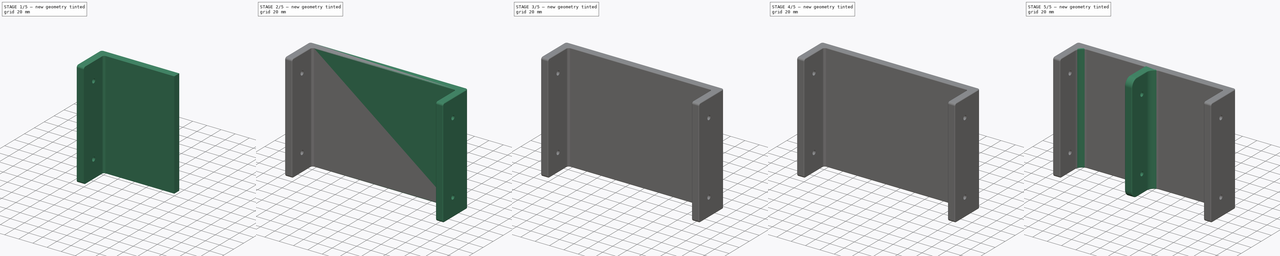
[diagram: build sequence overview — one tinted view per stage of 5, left to right]
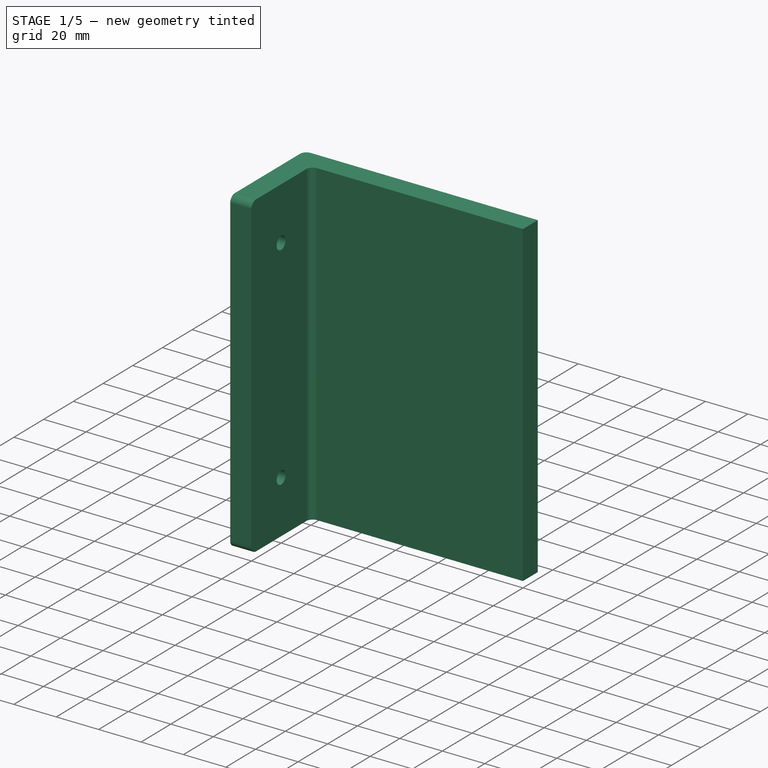
[diagram: stage 1 of 5 — iso view after this stage's code; geometry added in this stage tinted green]
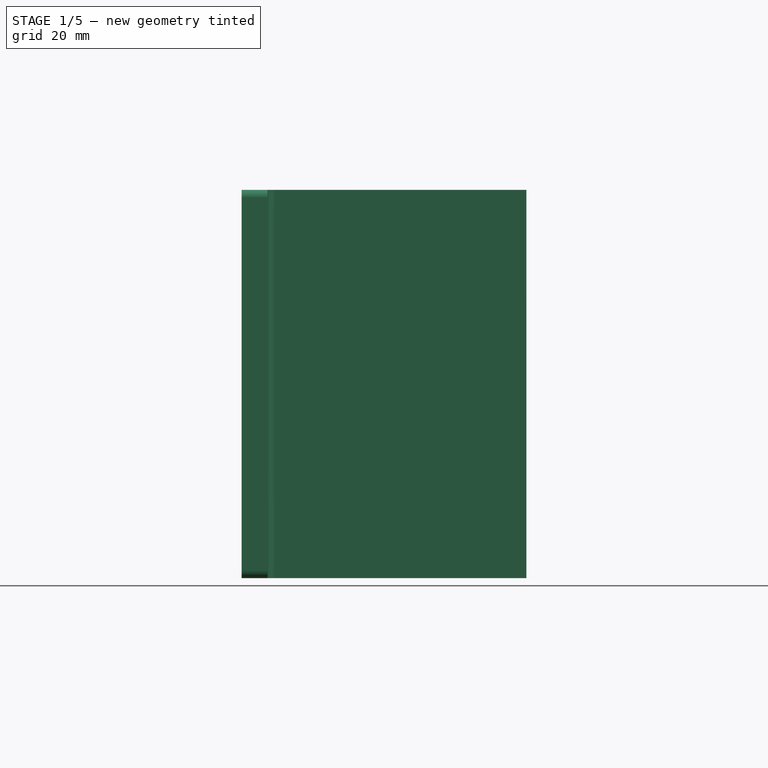
[diagram: stage 1 of 5 — front view after this stage's code; geometry added in this stage tinted green]
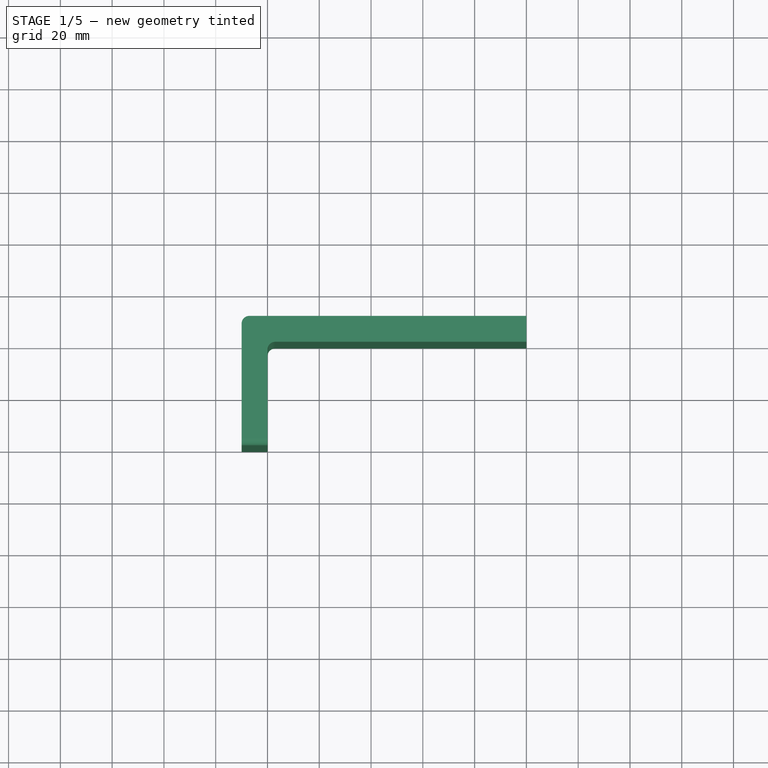
[diagram: stage 1 of 5 — top view after this stage's code; geometry added in this stage tinted green]
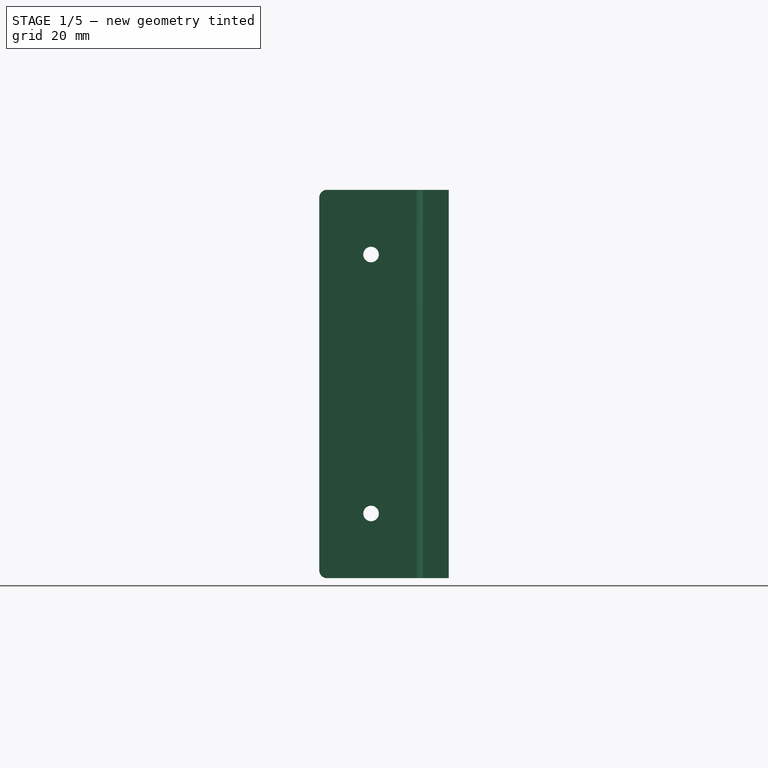
[diagram: stage 1 of 5 — right view after this stage's code; geometry added in this stage tinted green]
FCSTD DOCUMENT  (FreeCAD 1.0R39319 (Git))
Label: Batterie_fixation
License: All rights reserved
LicenseURL: https://en.wikipedia.org/wiki/All_rights_reserved
objects: PartDesign::Fillet×8, Sketcher::SketchObject×5, PartDesign::Pocket×3, PartDesign::Pad×2, PartDesign::Mirrored×2, PartDesign::LinearPattern×1, PartDesign::Body×1
note: 56 computed .brp shape members not serialized (recipe doc carries the construction recipe); baked Part::Feature solids carry a one-line shape summary decoded from their .brp

FEATURE [Sketcher::SketchObject] Sketch
  ArcFitTolerance = 1e-06
  AttachmentSupport = -> [XY_Plane]
  FullyConstrained = true
  MakeInternals = false
  MapMode = 5
  sketch-geometry (8):
    g0: LineSegment StartX=0 StartY=40 StartZ=0 EndX=-100 EndY=40 EndZ=0
    g1: LineSegment StartX=-100 StartY=0 StartZ=0 EndX=-100 EndY=40 EndZ=0
    g2: LineSegment StartX=-100 StartY=0 StartZ=0 EndX=-110 EndY=0 EndZ=0
    g3: LineSegment StartX=-110 StartY=0 StartZ=0 EndX=-110 EndY=50 EndZ=0
    g4: LineSegment StartX=-110 StartY=50 StartZ=0 EndX=0 EndY=50 EndZ=0
    g5: LineSegment StartX=0 StartY=50 StartZ=0 EndX=0 EndY=40 EndZ=0
    g6: LineSegment StartX=0 StartY=40 StartZ=0 EndX=0 EndY=50 EndZ=0
    g7: LineSegment StartX=0 StartY=40 StartZ=0 EndX=0 EndY=50 EndZ=0
  constraints (22):
    c: Coincident(g1,g0)
    c: Coincident(g2,g1)
    c: Coincident(g3,g2)
    c: Coincident(g4,g3)
    c: Horizontal(g4)
    c: Perpendicular(g4,g3)
    c: Perpendicular(g0,g1)
    c: Perpendicular(g1,g2)
    c: Distance(g-1,g0) = 40
    c: DistanceX(g2,g2) = 10
    c: Distance(g4,g0) = 10
    c: Coincident(g5,g4)
    c: Coincident(g5,g0)
    c: Coincident(g6,g4)
    c: Coincident(g7,g6)
    c: Coincident(g7,g4)
    c: Vertical(g7)
    c: PointOnObject(g2,g-1)
    c: PointOnObject(g1,g-1)
    c: Coincident(g0,g6)
    c: PointOnObject(g4,g-2)
    c: Distance(g-2,g1) = 100
FEATURE [PartDesign::Pad] Pad
  Direction = (0,0,1)
  Length = 150
  Length2 = 10
  Midplane = true
  Profile = -> Sketch
  ReferenceAxis = -> Sketch [N_Axis]
  Refine = true
  Suppressed = false
  Type = 0
FEATURE [Sketcher::SketchObject] Sketch001
  ArcFitTolerance = 1e-06
  AttachmentSupport = -> [Pad]
  FullyConstrained = true
  MakeInternals = false
  MapMode = 5
  Placement = pos=(-110,0,0) rot=(0.57735,-0.57735,-0.57735;2.0944rad)
  sketch-geometry (2):
    g0: Circle CenterX=-20 CenterY=-50 CenterZ=0 NormalX=0 NormalY=0 NormalZ=1 AngleXU=0 Radius=3
    g1: Circle CenterX=-20 CenterY=50 CenterZ=0 NormalX=0 NormalY=0 NormalZ=1 AngleXU=0 Radius=3
  constraints (5):
    c: Diameter(g1) = 6
    c: Equal(g1,g0)
    c: Symmetric(g1,g0,g-1)
    c: DistanceX(g0,g-1) = 20
    c: Distance(g0,g-1) = 50
FEATURE [PartDesign::Pocket] Pocket
  BaseFeature = -> Pad
  Direction = (1,0,0)
  Length = 5
  Length2 = 5
  Profile = -> Sketch001
  ReferenceAxis = -> Sketch001 [N_Axis]
  Refine = true
  Suppressed = false
  Type = 1
FEATURE [PartDesign::Fillet] Fillet
  Base = -> Pocket [Edge12,Edge5,Edge15,Edge8]
  BaseFeature = -> Pocket
  Radius = 3
  Refine = true
  SupportTransform = false
  Suppressed = false
  UseAllEdges = false
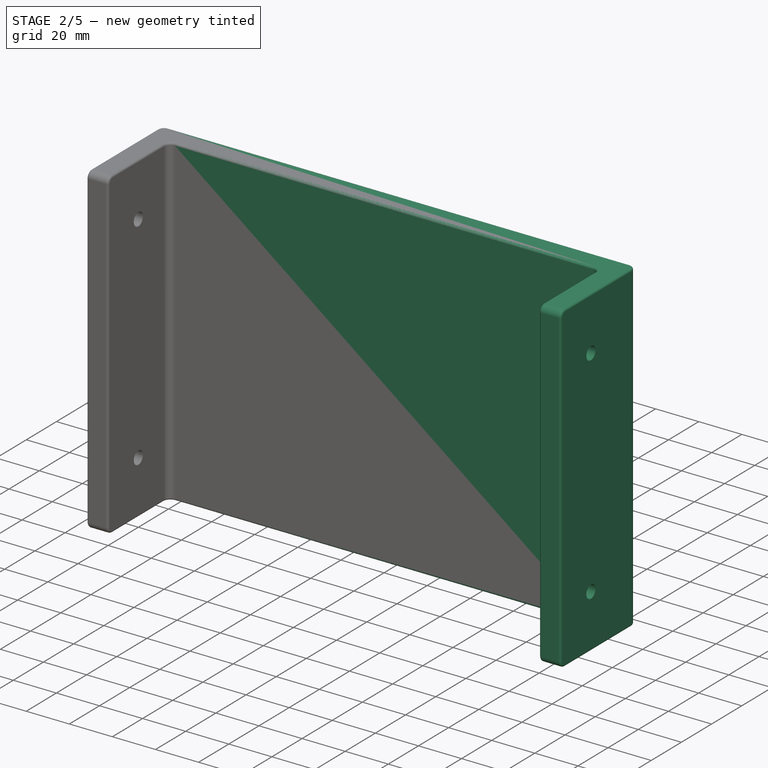
[diagram: stage 2 of 5 — iso view after this stage's code; geometry added in this stage tinted green]
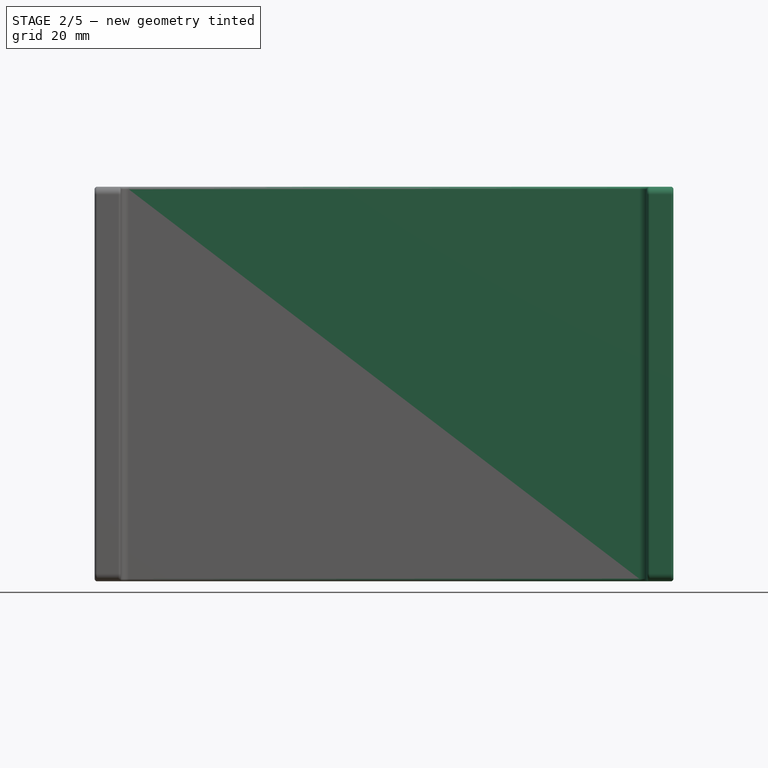
[diagram: stage 2 of 5 — front view after this stage's code; geometry added in this stage tinted green]
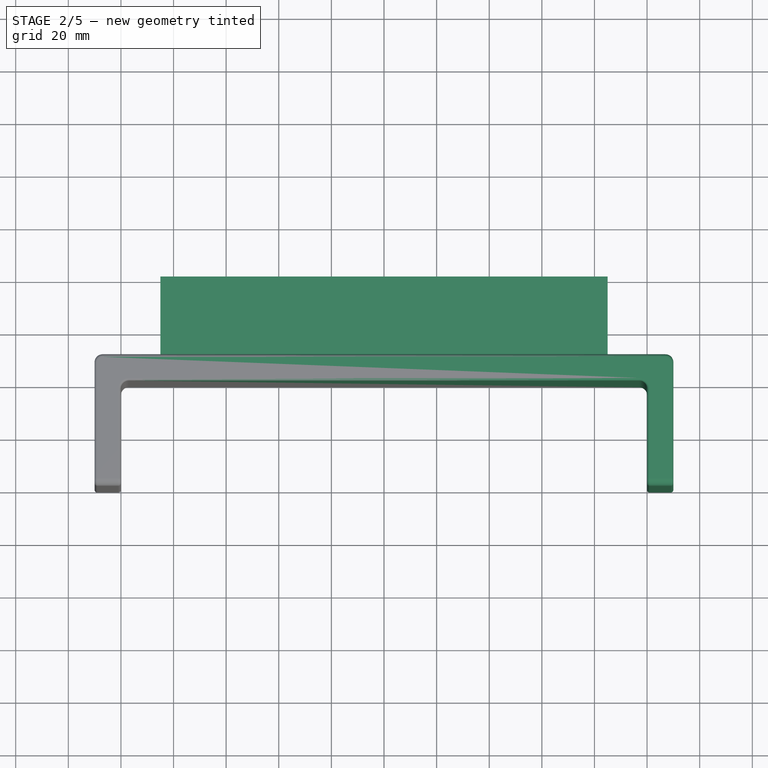
[diagram: stage 2 of 5 — top view after this stage's code; geometry added in this stage tinted green]
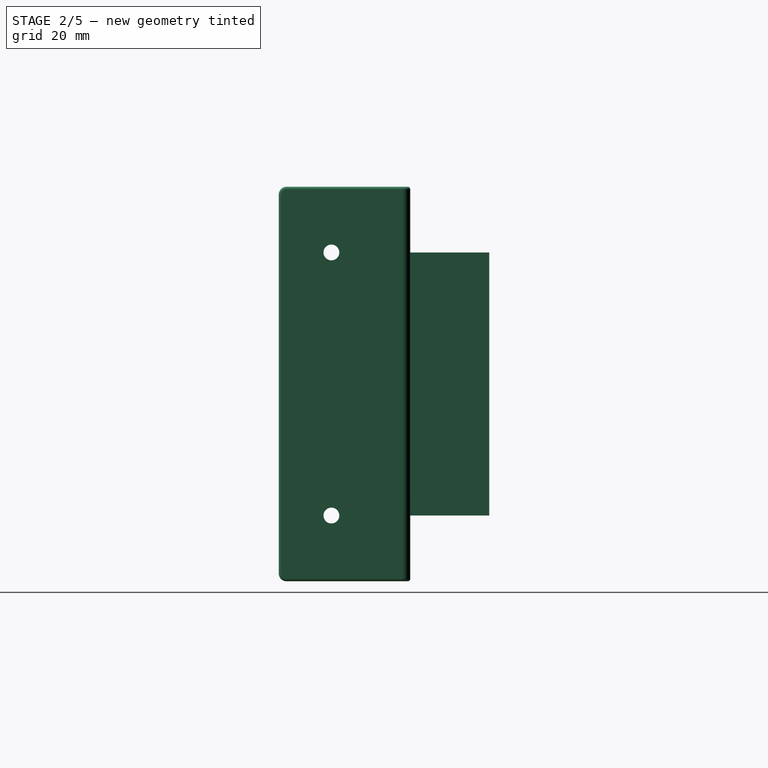
[diagram: stage 2 of 5 — right view after this stage's code; geometry added in this stage tinted green]
FEATURE [PartDesign::Fillet] Fillet001
  Base = -> Fillet [Edge18,Edge30]
  BaseFeature = -> Fillet
  Radius = 1
  Refine = true
  SupportTransform = false
  Suppressed = false
  UseAllEdges = false
FEATURE [PartDesign::Mirrored] Mirrored001
  BaseFeature = -> Fillet001
  MirrorPlane = -> YZ_Plane
  Refine = true
  Suppressed = false
  TransformMode = 1
FEATURE [PartDesign::Pad] Pad001
  BaseFeature = -> Mirrored001
  Direction = (0,1,-2e-16)
  Length = 30
  Length2 = 10
  Profile = -> Sketch002
  ReferenceAxis = -> Sketch002 [N_Axis]
  Refine = true
  Suppressed = false
  Type = 0
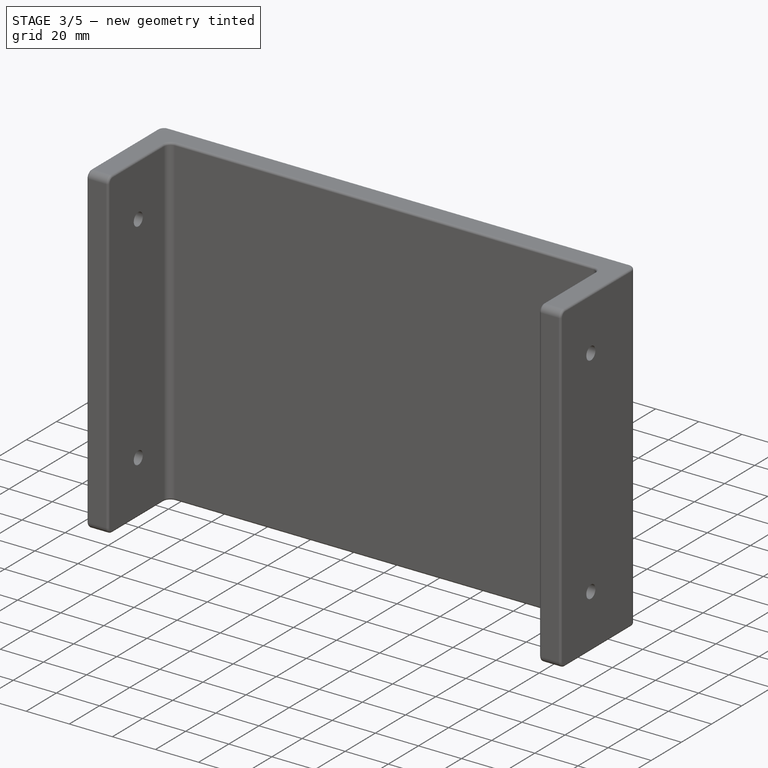
[diagram: stage 3 of 5 — iso view after this stage's code; geometry added in this stage tinted green]
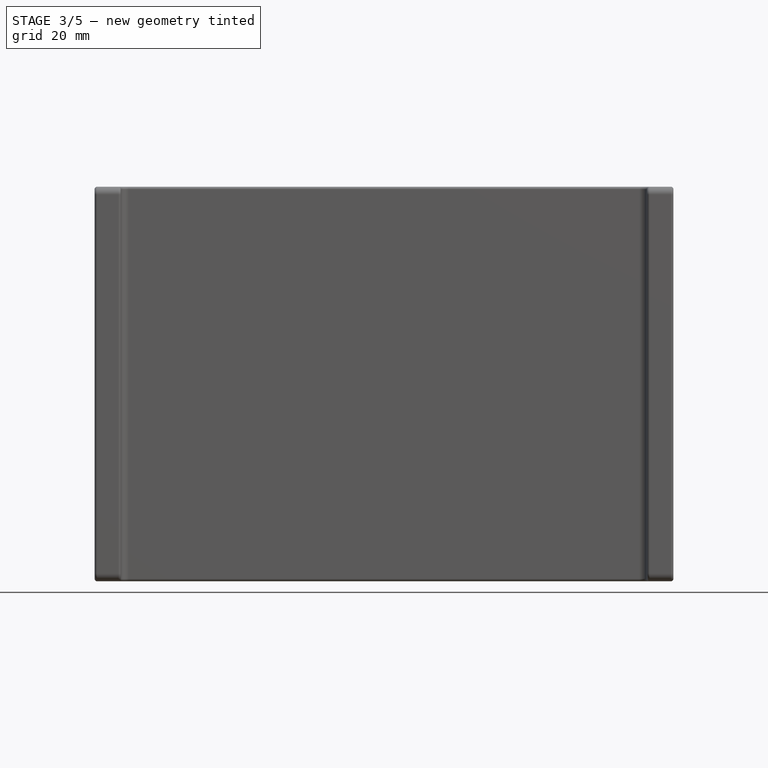
[diagram: stage 3 of 5 — front view after this stage's code; geometry added in this stage tinted green]
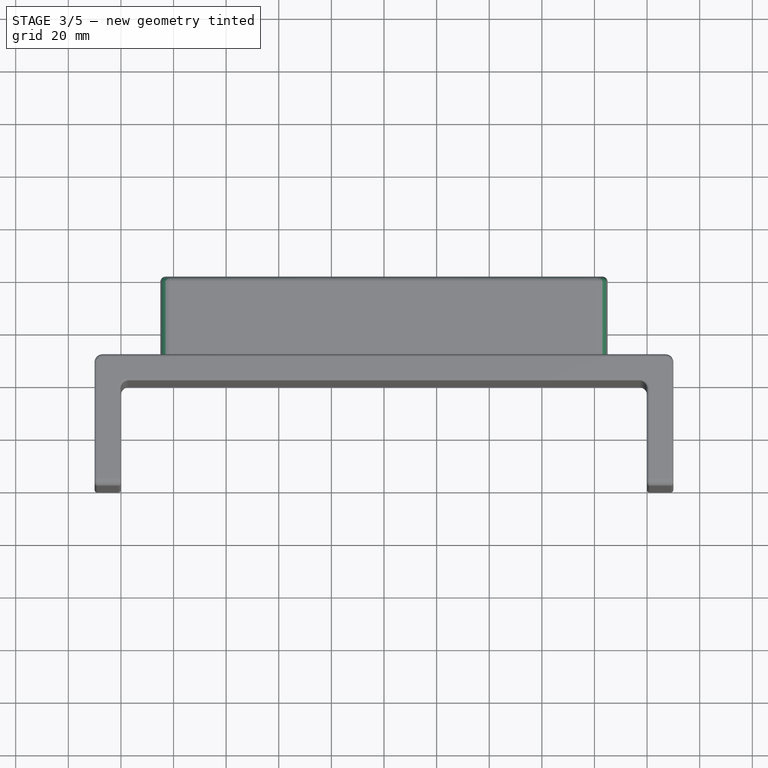
[diagram: stage 3 of 5 — top view after this stage's code; geometry added in this stage tinted green]
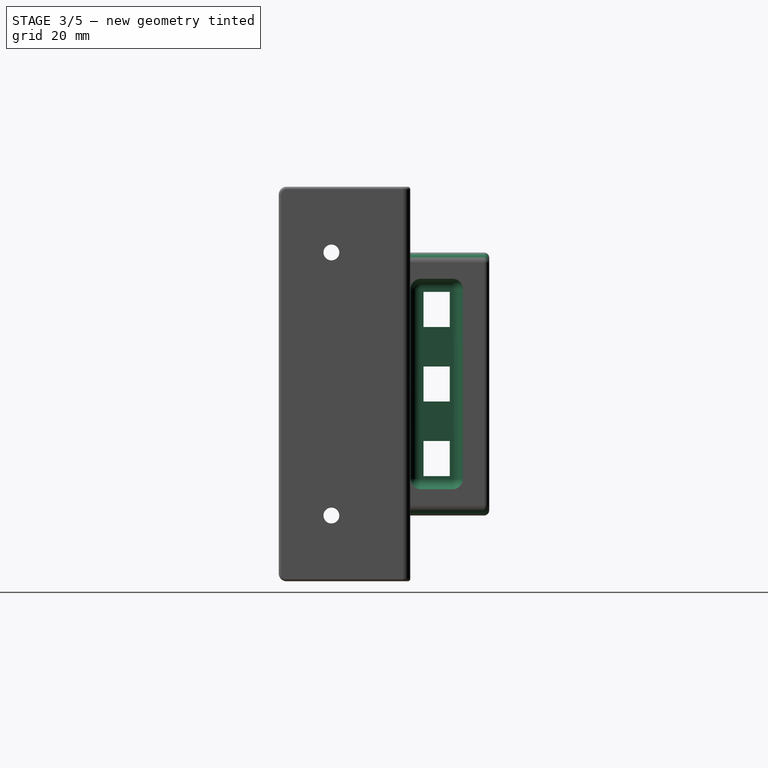
[diagram: stage 3 of 5 — right view after this stage's code; geometry added in this stage tinted green]
FEATURE [Sketcher::SketchObject] Sketch003
  ArcFitTolerance = 1e-06
  AttachmentSupport = -> [Pad001]
  ExternalGeometry = -> [Pad001]
  FullyConstrained = true
  MakeInternals = false
  MapMode = 5
  Placement = pos=(85,0,0) rot=(0.57735,0.57735,0.57735;2.0944rad)
  sketch-geometry (4):
    g0: LineSegment StartX=70 StartY=40 StartZ=0 EndX=50 EndY=40 EndZ=0
    g1: LineSegment StartX=50 StartY=40 StartZ=0 EndX=50 EndY=-40 EndZ=0
    g2: LineSegment StartX=50 StartY=-40 StartZ=0 EndX=70 EndY=-40 EndZ=0
    g3: LineSegment StartX=70 StartY=-40 StartZ=0 EndX=70 EndY=40 EndZ=0
  constraints (11):
    c: Coincident(g0,g1)
    c: Coincident(g1,g2)
    c: Coincident(g2,g3)
    c: Coincident(g3,g0)
    c: Horizontal(g0)
    c: Horizontal(g2)
    c: Vertical(g3)
    c: PointOnObject(g1,g-3)
    c: Symmetric(g0,g1,g-1)
    c: Distance(g-6,g2) = 10
    c: Distance(g-5,g3) = 10
FEATURE [PartDesign::Pocket] Pocket001
  BaseFeature = -> Pad001
  Direction = (-1,0,0)
  Length = 160
  Length2 = 5
  Profile = -> Sketch003
  ReferenceAxis = -> Sketch003 [N_Axis]
  Refine = true
  Suppressed = false
  Type = 0
FEATURE [Sketcher::SketchObject] Sketch004
  ArcFitTolerance = 1e-06
  AttachmentSupport = -> [Pocket001]
  ExternalGeometry = -> [Pocket001]
  FullyConstrained = true
  MakeInternals = false
  MapMode = 5
  Placement = pos=(-85,0,0) rot=(0.57735,-0.57735,-0.57735;2.0944rad)
  sketch-geometry (16):
    g0: LineSegment StartX=-65 StartY=6.66667 StartZ=0 EndX=-65 EndY=-6.66667 EndZ=0
    g1: LineSegment StartX=-65 StartY=-6.66667 StartZ=0 EndX=-55 EndY=-6.66667 EndZ=0
    g2: LineSegment StartX=-55 StartY=-6.66667 StartZ=0 EndX=-55 EndY=6.66667 EndZ=0
    g3: LineSegment StartX=-55 StartY=6.66667 StartZ=0 EndX=-65 EndY=6.66667 EndZ=0
    g4: LineSegment StartX=-65 StartY=-21.6667 StartZ=0 EndX=-65 EndY=-35 EndZ=0
    g5: LineSegment StartX=-65 StartY=-35 StartZ=0 EndX=-55 EndY=-35 EndZ=0
    g6: LineSegment StartX=-55 StartY=-35 StartZ=0 EndX=-55 EndY=-21.6667 EndZ=0
    g7: LineSegment StartX=-55 StartY=-21.6667 StartZ=0 EndX=-65 EndY=-21.6667 EndZ=0
    g8: LineSegment StartX=-65 StartY=21.6667 StartZ=0 EndX=-55 EndY=21.6667 EndZ=0
    g9: LineSegment StartX=-55 StartY=21.6667 StartZ=0 EndX=-55 EndY=35 EndZ=0
    g10: LineSegment StartX=-55 StartY=35 StartZ=0 EndX=-65 EndY=35 EndZ=0
    g11: LineSegment StartX=-65 StartY=35 StartZ=0 EndX=-65 EndY=21.6667 EndZ=0
    g12: LineSegment [constr] StartX=-55 StartY=-21.6667 StartZ=0 EndX=-55 EndY=-6.66667 EndZ=0
    g13: LineSegment [constr] StartX=-55 StartY=6.66667 StartZ=0 EndX=-55 EndY=21.6667 EndZ=0
    g14: LineSegment [constr] StartX=-55 StartY=-35 StartZ=0 EndX=-55 EndY=-50 EndZ=0
    g15: LineSegment [constr] StartX=-55 StartY=35 StartZ=0 EndX=-55 EndY=50 EndZ=0
  constraints (44):
    c: Coincident(g0,g1)
    c: Coincident(g1,g2)
    c: Coincident(g2,g3)
    c: Coincident(g3,g0)
    c: Vertical(g0)
    c: Horizontal(g1)
    c: Horizontal(g3)
    c: Coincident(g4,g5)
    c: Coincident(g5,g6)
    c: Coincident(g6,g7)
    c: Coincident(g7,g4)
    c: Vertical(g4)
    c: Vertical(g6)
    c: Horizontal(g5)
    c: Horizontal(g7)
    c: Coincident(g8,g9)
    c: Coincident(g9,g10)
    c: Coincident(g10,g11)
    c: Coincident(g11,g8)
    c: Horizontal(g8)
    c: Horizontal(g10)
    c: Vertical(g9)
    c: Vertical(g11)
    c: Equal(g9,g2)
    c: Equal(g2,g6)
    c: Equal(g1,g7)
    c: Equal(g8,g3)
    c: Symmetric(g2,g1,g-1)
    c: Symmetric(g8,g6,g-1)
    c: Distance(g-3,g4) = 15
    c: Distance(g5,g-4) = 15
    c: DistanceX(g5,g5) = 10
    c: Coincident(g12,g6)
    c: Coincident(g12,g1)
    c: Coincident(g13,g2)
    c: Coincident(g13,g8)
    c: Perpendicular(g13,g3)
    c: Coincident(g14,g5)
    c: Coincident(g15,g9)
    c: PointOnObject(g15,g-5)
    c: PointOnObject(g14,g-4)
    c: Perpendicular(g14,g-4)
    c: Perpendicular(g-5,g15)
    c: Equal(g14,g12)
FEATURE [PartDesign::Pocket] Pocket002
  BaseFeature = -> Pocket001
  Direction = (1,0,0)
  Length = 5
  Length2 = 5
  Profile = -> Sketch004
  ReferenceAxis = -> Sketch004 [N_Axis]
  Refine = true
  Suppressed = false
  Type = 1
FEATURE [PartDesign::Fillet] Fillet002
  Base = -> Pocket002 [Edge91,Edge90,Edge28,Edge29,Edge92,Edge93,Edge106,Edge30,Edge84,Edge68,Edge89,Edge70]
  BaseFeature = -> Pocket002
  Radius = 4
  Refine = true
  SupportTransform = false
  Suppressed = false
  UseAllEdges = false
FEATURE [PartDesign::Fillet] Fillet003
  Base = -> Fillet002 [Edge46]
  BaseFeature = -> Fillet002
  Radius = 2
  Refine = true
  SupportTransform = false
  Suppressed = false
  UseAllEdges = false
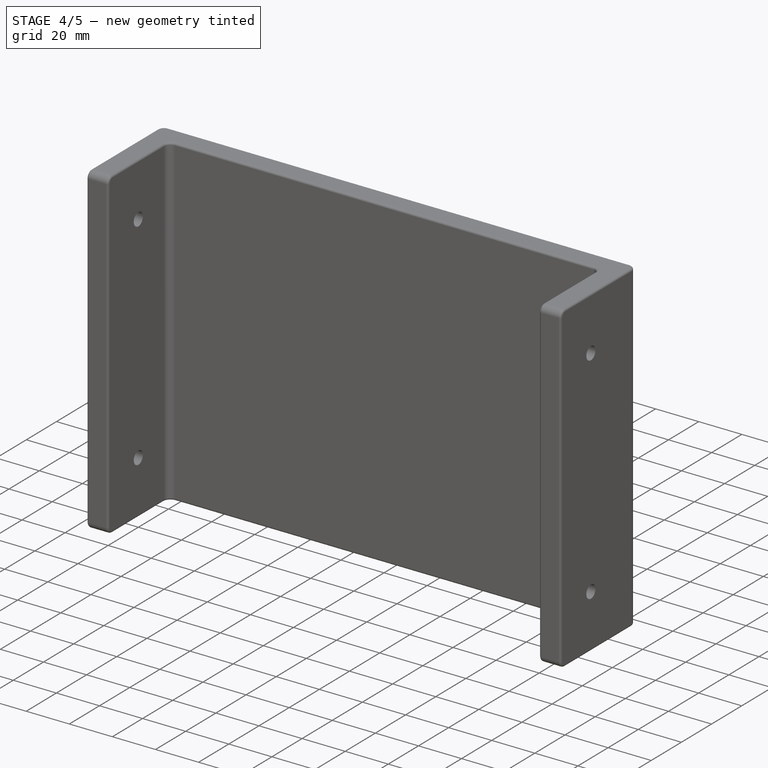
[diagram: stage 4 of 5 — iso view after this stage's code; geometry added in this stage tinted green]
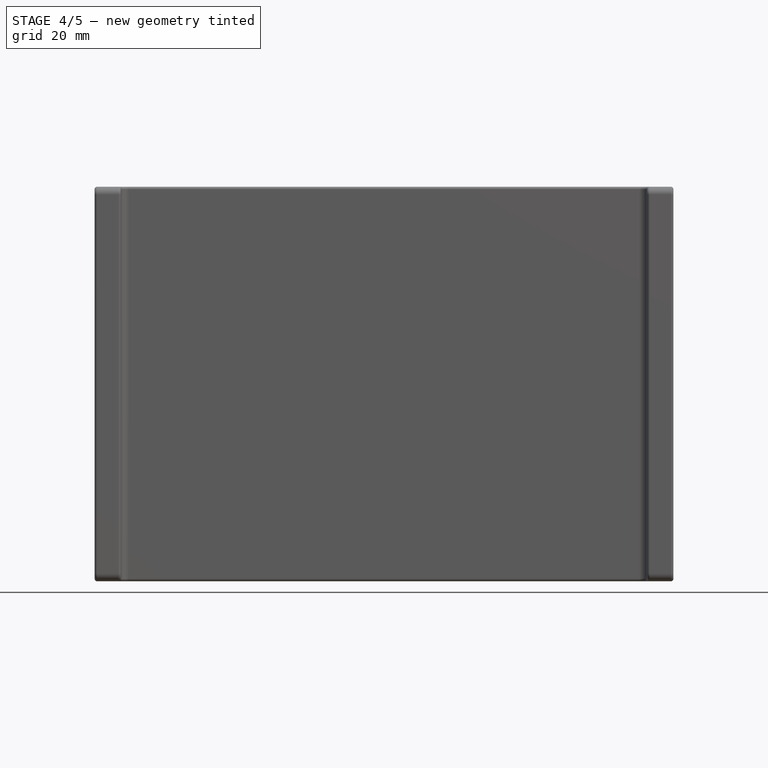
[diagram: stage 4 of 5 — front view after this stage's code; geometry added in this stage tinted green]
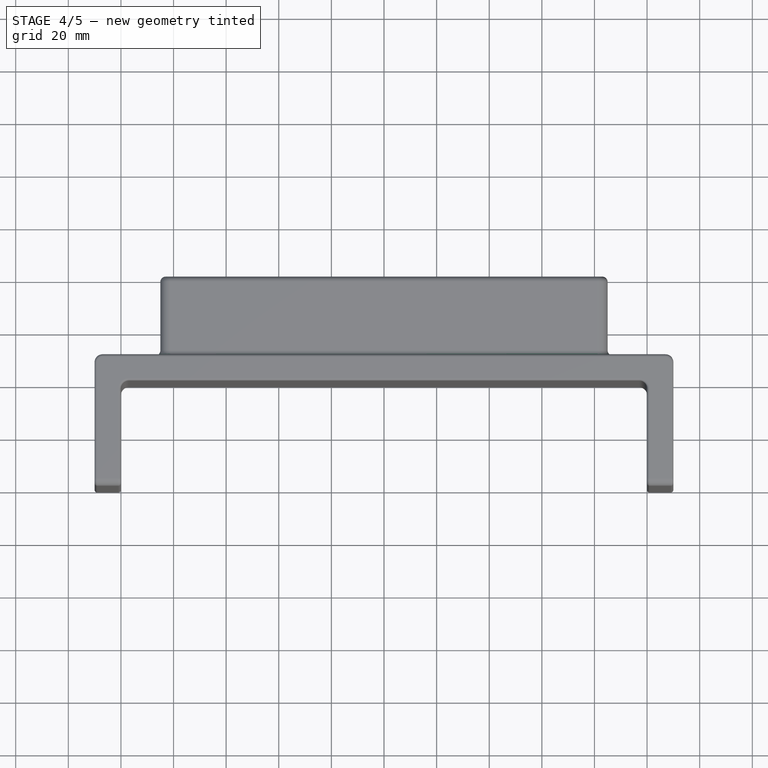
[diagram: stage 4 of 5 — top view after this stage's code; geometry added in this stage tinted green]
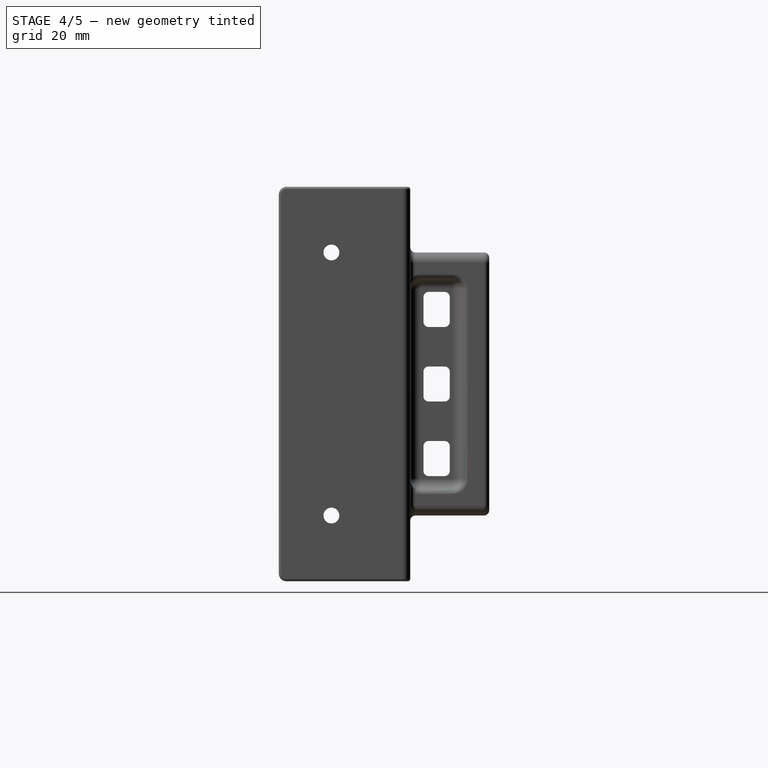
[diagram: stage 4 of 5 — right view after this stage's code; geometry added in this stage tinted green]
FEATURE [PartDesign::Fillet] Fillet004
  Base = -> Fillet003 [Edge29]
  BaseFeature = -> Fillet003
  Radius = 2
  Refine = true
  SupportTransform = false
  Suppressed = false
  UseAllEdges = false
FEATURE [PartDesign::Fillet] Fillet005
  Base = -> Fillet004 [Edge140]
  BaseFeature = -> Fillet004
  Radius = 2
  Refine = true
  SupportTransform = false
  Suppressed = false
  UseAllEdges = false
FEATURE [PartDesign::Fillet] Fillet006
  Base = -> Fillet005 [Edge187,Edge186,Edge185,Edge184,Edge188,Edge190,Edge191,Edge189,Edge194,Edge195,Edge192,Edge193]
  BaseFeature = -> Fillet005
  Radius = 2
  Refine = true
  SupportTransform = false
  Suppressed = false
  UseAllEdges = false
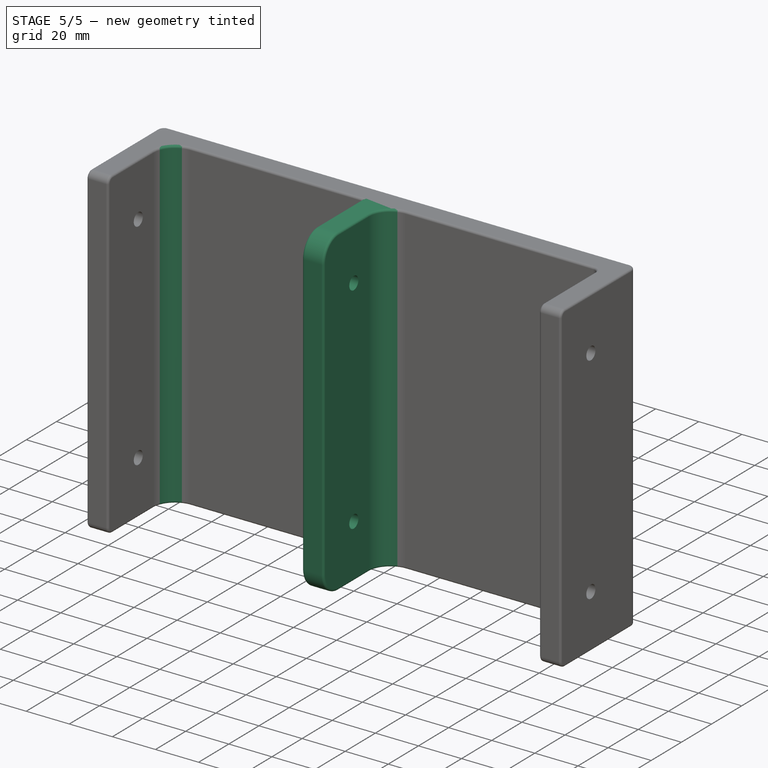
[diagram: stage 5 of 5 — iso view after this stage's code; geometry added in this stage tinted green]
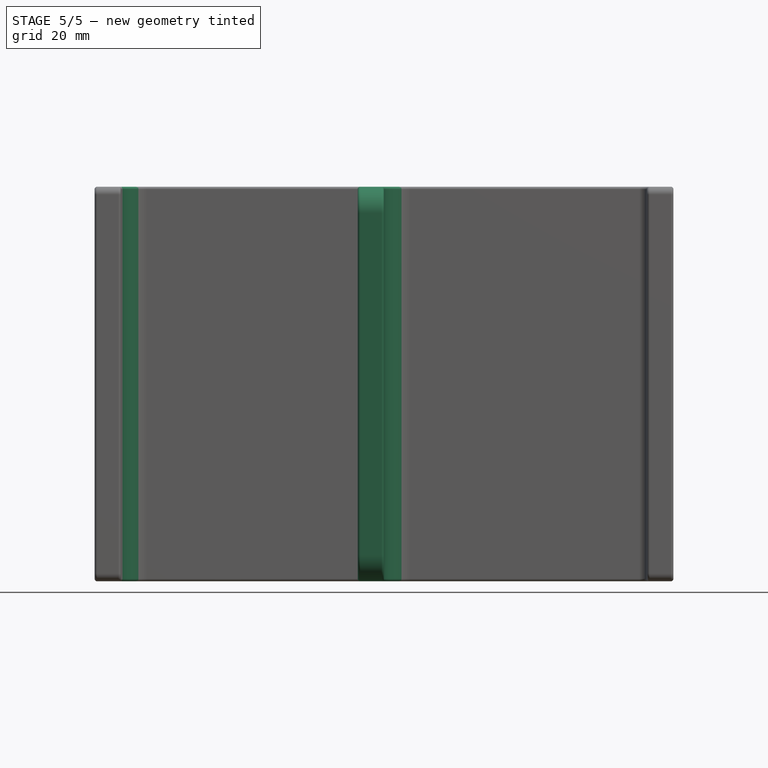
[diagram: stage 5 of 5 — front view after this stage's code; geometry added in this stage tinted green]
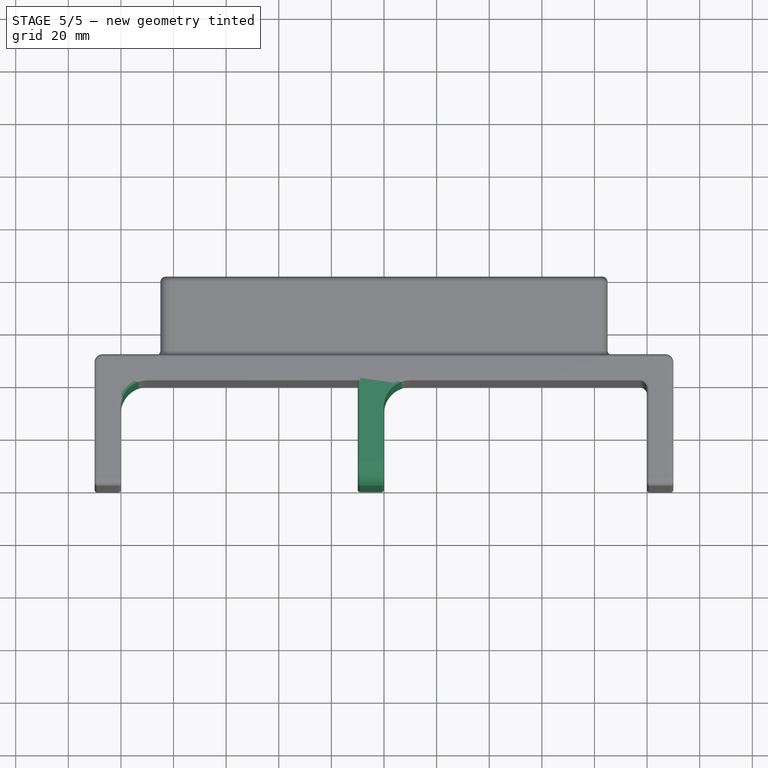
[diagram: stage 5 of 5 — top view after this stage's code; geometry added in this stage tinted green]
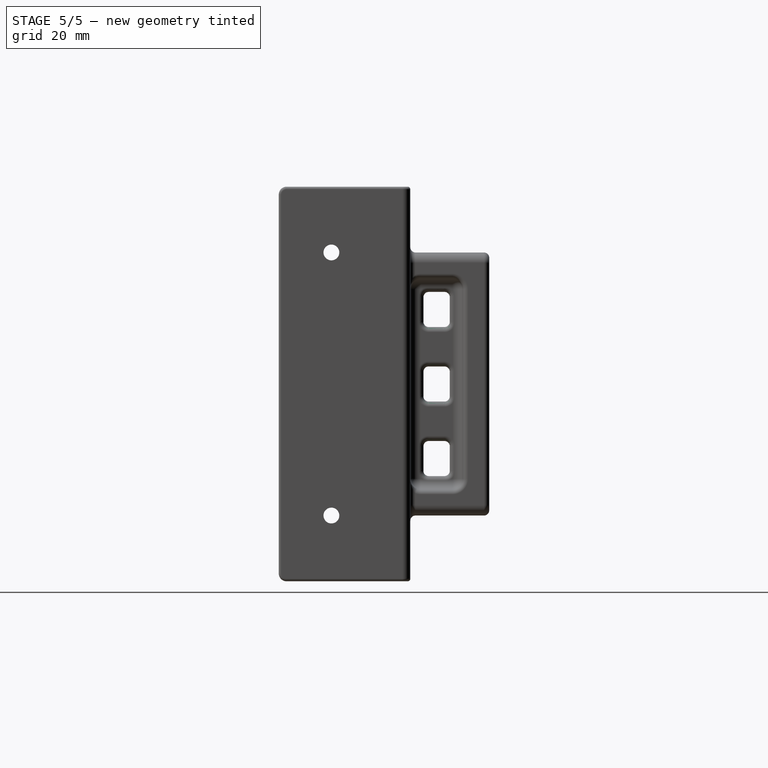
[diagram: stage 5 of 5 — right view after this stage's code; geometry added in this stage tinted green]
FEATURE [Sketcher::SketchObject] Sketch002
  ArcFitTolerance = 1e-06
  AttachmentSupport = -> [Fillet001]
  FullyConstrained = true
  MakeInternals = false
  MapMode = 5
  Placement = pos=(0,50,0) rot=(0,0.707107,0.707107;3.14159rad)
  sketch-geometry (6):
    g0: LineSegment StartX=0 StartY=-50 StartZ=0 EndX=85 EndY=-50 EndZ=0
    g1: LineSegment StartX=85 StartY=-50 StartZ=0 EndX=85 EndY=50 EndZ=0
    g2: LineSegment StartX=85 StartY=50 StartZ=0 EndX=0 EndY=50 EndZ=0
    g3: LineSegment StartX=0 StartY=50 StartZ=0 EndX=-85 EndY=50 EndZ=0
    g4: LineSegment StartX=-85 StartY=50 StartZ=0 EndX=-85 EndY=-50 EndZ=0
    g5: LineSegment StartX=-85 StartY=-50 StartZ=0 EndX=0 EndY=-50 EndZ=0
  constraints (17):
    c: Coincident(g0,g1)
    c: Coincident(g1,g2)
    c: Horizontal(g0)
    c: Horizontal(g2)
    c: PointOnObject(g2,g-2)
    c: Symmetric(g1,g0,g-1)
    c: DistanceX(g2,g2) = 85
    c: DistanceY(g1,g1) = 100
    c: Coincident(g3,g4)
    c: Coincident(g4,g5)
    c: Vertical(g4)
    c: Horizontal(g3)
    c: Horizontal(g5)
    c: Equal(g3,g2)
    c: Coincident(g2,g3)
    c: Coincident(g0,g5)
    c: PointOnObject(g0,g-2)
FEATURE [PartDesign::LinearPattern] LinearPattern
  BaseFeature = -> Fillet001
  Direction = -> X_Axis
  Length = 100
  Mode = 0
  Occurrences = 2
  Offset = 100
  Refine = true
  Suppressed = false
  TransformMode = 0
FEATURE [PartDesign::Mirrored] Mirrored
  BaseFeature = -> Fillet001
  MirrorPlane = -> XY_Plane
  Refine = true
  Suppressed = false
  TransformMode = 0
FEATURE [PartDesign::Fillet] Fillet007
  Base = -> Fillet006 [Edge21,Edge73,Edge16,Edge64,Edge4,Edge36]
  BaseFeature = -> Fillet006
  Radius = 2
  Refine = true
  SupportTransform = false
  Suppressed = false
  UseAllEdges = false
FEATURE [PartDesign::Body] Body  label="Corps"
  AllowCompound = false
  Group = -> [Sketch,Pad,Sketch001,Pocket,Fillet,Fillet001,LinearPattern,Mirrored,Mirrored001,Sketch002,Pad001,Sketch003,Pocket001,Sketch004,Pocket002,Fillet002,Fillet003,Fillet004,Fillet005,Fillet006,Fillet007]
  Origin = -> Origin
  Tip = -> Fillet007
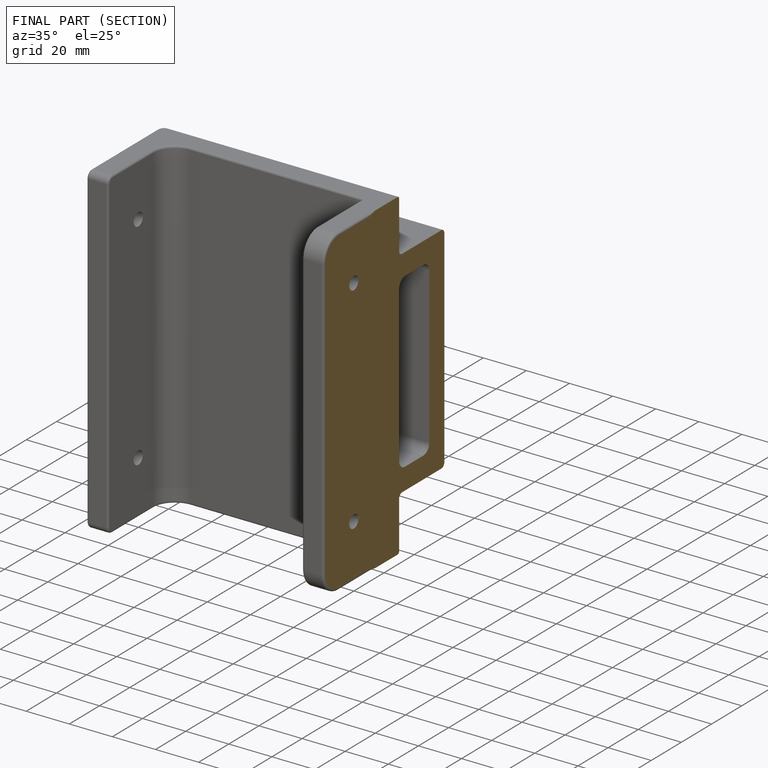
[diagram: finished part — half-section view (interior)]
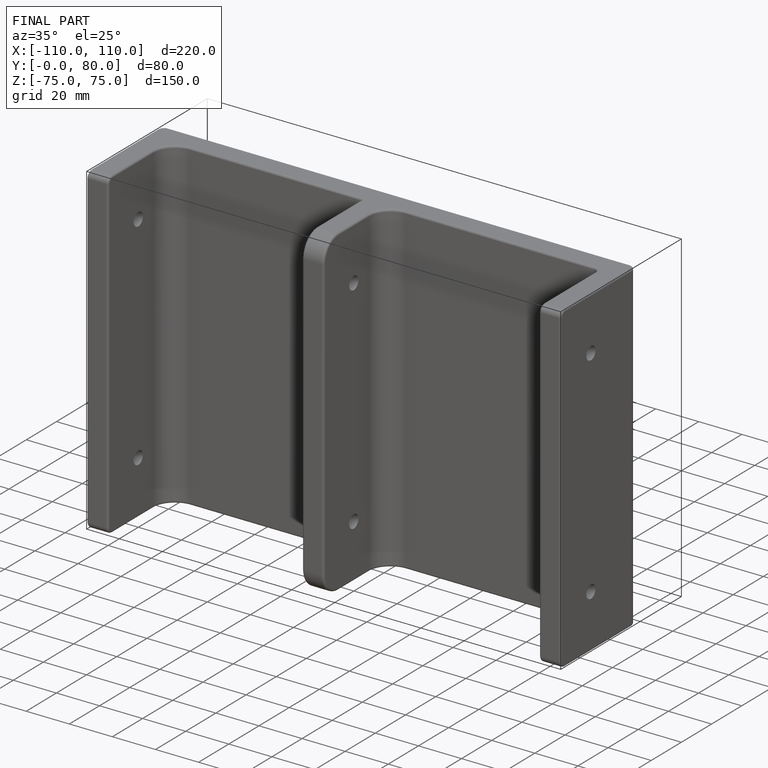
[diagram: finished part — iso view with bounding-box wireframe]
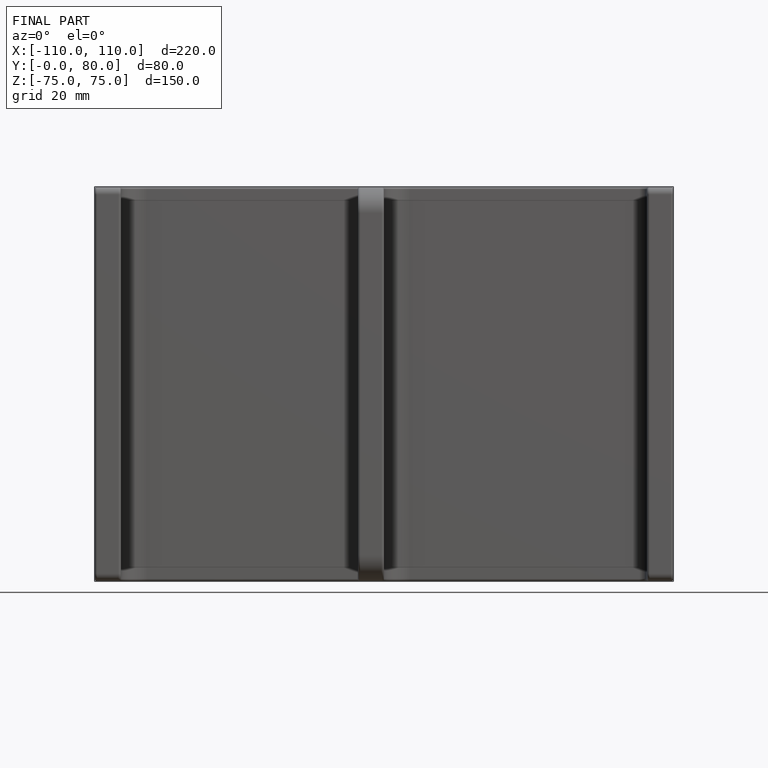
[diagram: finished part — front view with bounding-box wireframe]
